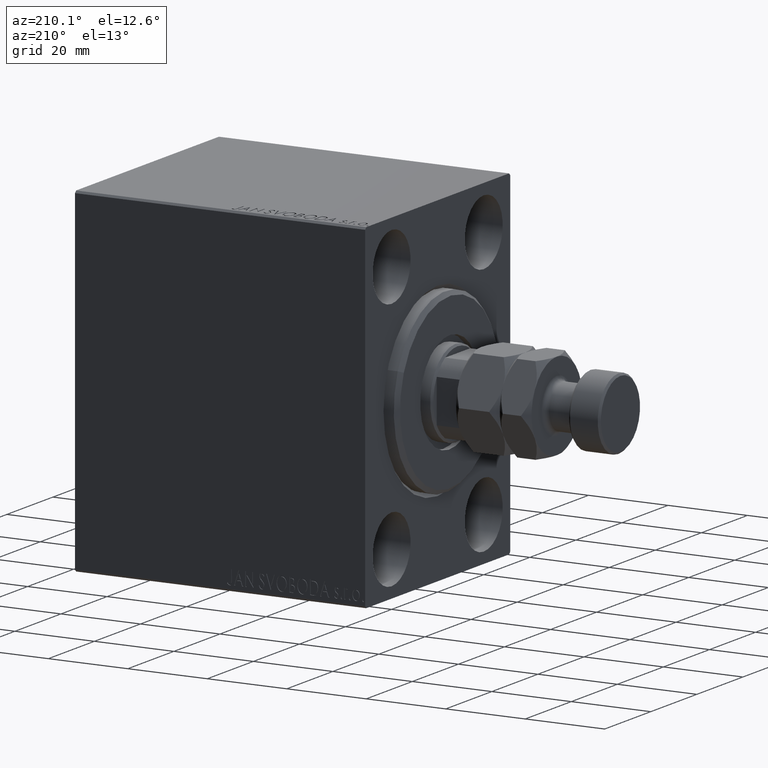
[diagram: clean part render]
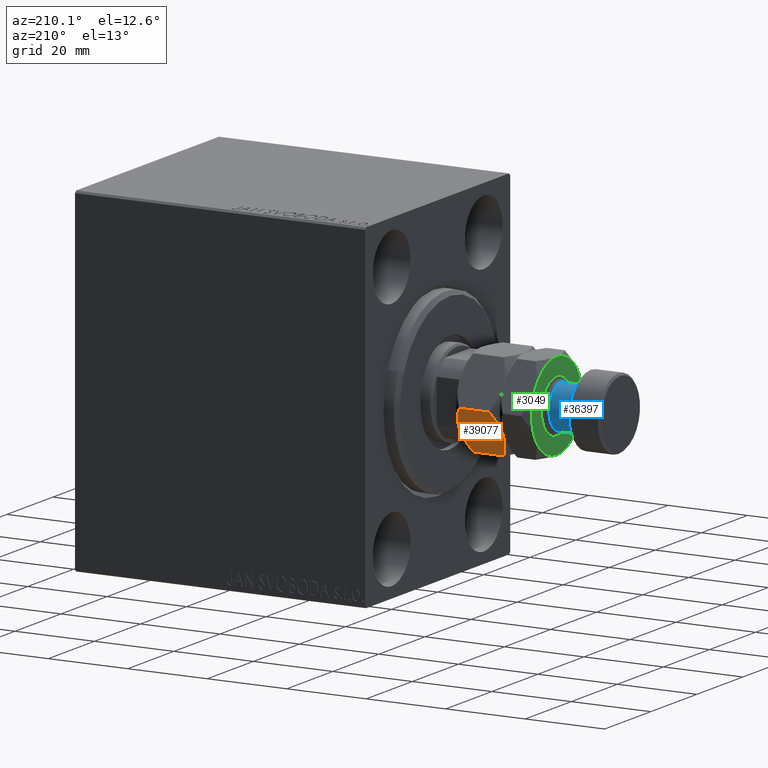
[diagram: same view with three faces highlighted in distinct colors, each labeled with its STEP entity id]
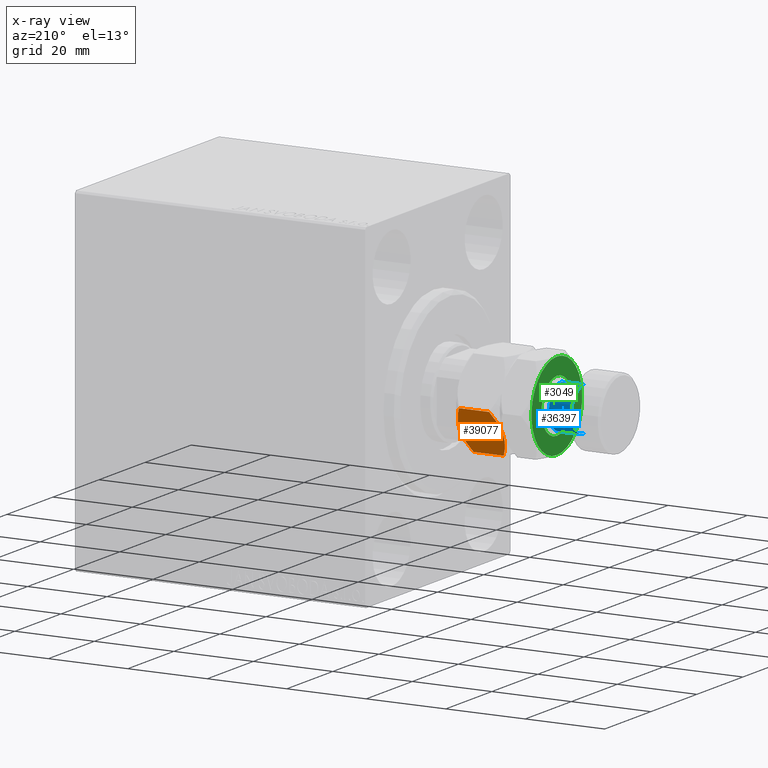
[diagram: x-ray of the same camera — body ghosted, the three highlighted faces saturated]
A machine part, auxiliary view with three faces highlighted in distinct colors.
The next image is the same camera in x-ray (body ghosted, the three faces saturated) — at least one of them is partly hidden behind the body in this view.
Their STEP definitions:

[orange] entity #39077 — the highlighted planar face has unit normal (0, -0.866, 0.5).
#247 = VERTEX_POINT ( 'NONE', #18101 ) ;
#668 = CARTESIAN_POINT ( 'NONE',  ( -11.00000000000000000, 6.350852961085890591, 9.298294077828234805 ) ) ;
#822 = VERTEX_POINT ( 'NONE', #25095 ) ;
#1100 = CARTESIAN_POINT ( 'NONE',  ( -5.499999999999992895, 9.526279441628830114, 0.000000000000000000 ) ) ;
#1340 = CARTESIAN_POINT ( 'NONE',  ( -3.579894028994817123, 10.63485314086127786, 10.79187792513292798 ) ) ;
#2362 = ORIENTED_EDGE ( 'NONE', *, *, #35231, .F. ) ;
#2654 = CARTESIAN_POINT ( 'NONE',  ( -5.499999999999992895, 9.526279441628830114, 0.000000000000000000 ) ) ;
#2948 = DIRECTION ( 'NONE',  ( -0.000000000000000000, -0.000000000000000000, -1.000000000000000000 ) ) ;
#3051 = CARTESIAN_POINT ( 'NONE',  ( -5.499999999999990230, 9.526279441628824785, 11.00000000000000000 ) ) ;
#3215 = LINE ( 'NONE', #41335, #27632 ) ;
#3329 = CARTESIAN_POINT ( 'NONE',  ( -7.884967580346608607, 8.149317767107183030, 0.3282192120904074417 ) ) ;
#3405 = ORIENTED_EDGE ( 'NONE', *, *, #11334, .F. ) ;
#5258 = CARTESIAN_POINT ( 'NONE',  ( -5.018290712253354435, 9.804394428580495813, 11.00000000000000178 ) ) ;
#5815 = DIRECTION ( 'NONE',  ( 0.8660254037844389297, 0.4999999999999992784, 0.000000000000000000 ) ) ;
#6557 = CARTESIAN_POINT ( 'NONE',  ( -5.981709287746635795, 9.248164454677164414, 1.734723475976807094E-15 ) ) ;
#7592 = VECTOR ( 'NONE', #2948, 1000.000000000000000 ) ;
#8931 = CARTESIAN_POINT ( 'NONE',  ( -4.529374112020101428, 10.08667055933643830, 10.95634070256487469 ) ) ;
#9261 = DIRECTION ( 'NONE',  ( 0.4999999999999993339, -0.8660254037844390407, 0.000000000000000000 ) ) ;
#9503 = CARTESIAN_POINT ( 'NONE',  ( -6.456670474420569406, 8.973945485696344093, 11.00000000000000000 ) ) ;
#9576 = ORIENTED_EDGE ( 'NONE', *, *, #31020, .F. ) ;
#10565 = VERTEX_POINT ( 'NONE', #35895 ) ;
#11334 = EDGE_CURVE ( 'NONE', #15381, #10565, #36693, .T. ) ;
#11448 = CARTESIAN_POINT ( 'NONE',  ( -1.748214531935804672, 11.69237379155741330, 0.7776848045220272621 ) ) ;
#11634 = B_SPLINE_CURVE_WITH_KNOTS ( 'NONE', 3,
 ( #1100, #18771, #43120, #11448, #15345, #40133 ),
 .UNSPECIFIED., .F., .F.,
 ( 4, 2, 4 ),
 ( 0.006583488920348303831, 0.009852050593448711396, 0.01312061226654911809 ),
 .UNSPECIFIED. ) ;
#12272 = CARTESIAN_POINT ( 'NONE',  ( -4.327962126576701651E-16, 12.70170592217176342, 9.298294077828241910 ) ) ;
#12985 = EDGE_LOOP ( 'NONE', ( #2362, #15192, #9576, #3405, #19566, #22036 ) ) ;
#13447 = CARTESIAN_POINT ( 'NONE',  ( -11.00000000000000000, 6.350852961085892368, 1.701705922171765195 ) ) ;
#13991 = EDGE_CURVE ( 'NONE', #15381, #14076, #30511, .T. ) ;
#14076 = VERTEX_POINT ( 'NONE', #28418 ) ;
#15192 = ORIENTED_EDGE ( 'NONE', *, *, #28940, .F. ) ;
#15345 = CARTESIAN_POINT ( 'NONE',  ( -0.8614806024966418230, 12.20432986441868728, 1.204329864418604235 ) ) ;
#15381 = VERTEX_POINT ( 'NONE', #12272 ) ;
#17052 = CARTESIAN_POINT ( 'NONE',  ( -11.00000000000000000, 6.350852961085890591, 9.298294077828234805 ) ) ;
#17770 = EDGE_CURVE ( 'NONE', #247, #14076, #11634, .T. ) ;
#18101 = CARTESIAN_POINT ( 'NONE',  ( -5.499999999999992895, 9.526279441628830114, 0.000000000000000000 ) ) ;
#18771 = CARTESIAN_POINT ( 'NONE',  ( -4.543329525579419048, 10.07861339756131791, 1.768604793866978714E-15 ) ) ;
#19566 = ORIENTED_EDGE ( 'NONE', *, *, #13991, .T. ) ;
#20326 = CARTESIAN_POINT ( 'NONE',  ( -6.470625887979888802, 8.965888323921223702, 0.04365929743512723255 ) ) ;
#20763 = CARTESIAN_POINT ( 'NONE',  ( -7.420105971005176215, 8.417705742396382362, 0.2081220748670755127 ) ) ;
#21995 = CARTESIAN_POINT ( 'NONE',  ( -4.327962126576701651E-16, 12.70170592217176342, 9.298294077828241910 ) ) ;
#22036 = ORIENTED_EDGE ( 'NONE', *, *, #17770, .F. ) ;
#22908 = CARTESIAN_POINT ( 'NONE',  ( -3.115032419653383400, 10.90324111615047542, 10.67178078790959539 ) ) ;
#23935 = CARTESIAN_POINT ( 'NONE',  ( -9.251785468064188223, 7.360185091700242488, 10.22231519547797340 ) ) ;
#25095 = CARTESIAN_POINT ( 'NONE',  ( -11.00000000000000000, 6.350852961085892368, 1.701705922171765195 ) ) ;
#27552 = DIRECTION ( 'NONE',  ( -0.000000000000000000, -0.000000000000000000, -1.000000000000000000 ) ) ;
#27632 = VECTOR ( 'NONE', #27552, 1000.000000000000000 ) ;
#28418 = CARTESIAN_POINT ( 'NONE',  ( 9.006588997586899406E-16, 12.70170592217176342, 1.701705922171758312 ) ) ;
#28940 = EDGE_CURVE ( 'NONE', #35876, #822, #3215, .T. ) ;
#29227 = CARTESIAN_POINT ( 'NONE',  ( 0.000000000000000000, 12.70170592217176342, 11.00000000000000000 ) ) ;
#29587 = B_SPLINE_CURVE_WITH_KNOTS ( 'NONE', 3,
 ( #3051, #9503, #41394, #23935, #37495, #17052 ),
 .UNSPECIFIED., .F., .F.,
 ( 4, 2, 4 ),
 ( 0.006583488920348289086, 0.009852050593448704457, 0.01312061226654911983 ),
 .UNSPECIFIED. ) ;
#29916 = FACE_OUTER_BOUND ( 'NONE', #12985, .T. ) ;
#30441 = CARTESIAN_POINT ( 'NONE',  ( -10.13752086928278118, 6.848805519375908979, 1.203753363881748362 ) ) ;
#30511 = LINE ( 'NONE', #37848, #7592 ) ;
#31020 = EDGE_CURVE ( 'NONE', #10565, #35876, #29587, .T. ) ;
#35231 = EDGE_CURVE ( 'NONE', #822, #247, #42996, .T. ) ;
#35876 = VERTEX_POINT ( 'NONE', #668 ) ;
#35895 = CARTESIAN_POINT ( 'NONE',  ( -5.499999999999990230, 9.526279441628824785, 11.00000000000000000 ) ) ;
#36469 = CARTESIAN_POINT ( 'NONE',  ( -1.744478007639206130, 11.69453107486589083, 10.21937661245322637 ) ) ;
#36692 = CARTESIAN_POINT ( 'NONE',  ( -5.499999999999990230, 9.526279441628824785, 11.00000000000000000 ) ) ;
#36693 = B_SPLINE_CURVE_WITH_KNOTS ( 'NONE', 3,
 ( #21995, #40364, #36469, #22908, #1340, #8931, #5258, #36692 ),
 .UNSPECIFIED., .F., .F.,
 ( 4, 2, 2, 4 ),
 ( 2.544311317609508508E-07, 0.003291871675740026034, 0.004937680298044156910, 0.006583488920348289086 ),
 .UNSPECIFIED. ) ;
#37495 = CARTESIAN_POINT ( 'NONE',  ( -10.13851939750335696, 6.848229018838968507, 9.795670135581390880 ) ) ;
#37848 = CARTESIAN_POINT ( 'NONE',  ( 0.000000000000000000, 12.70170592217176342, 11.00000000000000000 ) ) ;
#38536 = AXIS2_PLACEMENT_3D ( 'NONE', #29227, #9261, #5815 ) ;
#39077 = ADVANCED_FACE ( 'NONE', ( #29916 ), #43697, .F. ) ;
#40133 = CARTESIAN_POINT ( 'NONE',  ( 9.006588997586899406E-16, 12.70170592217176342, 1.701705922171758312 ) ) ;
#40364 = CARTESIAN_POINT ( 'NONE',  ( -0.8624791307172121613, 12.20375336388174681, 9.796246636118258522 ) ) ;
#41335 = CARTESIAN_POINT ( 'NONE',  ( -11.00000000000000000, 6.350852961085890591, 11.00000000000000000 ) ) ;
#41394 = CARTESIAN_POINT ( 'NONE',  ( -7.397073880711845462, 8.431003325927239445, 10.83109139163524404 ) ) ;
#42996 = B_SPLINE_CURVE_WITH_KNOTS ( 'NONE', 3,
 ( #13447, #30441, #44443, #3329, #20763, #20326, #6557, #2654 ),
 .UNSPECIFIED., .F., .F.,
 ( 4, 2, 2, 4 ),
 ( 2.544311317612473652E-07, 0.003291871675740032539, 0.004937680298044168185, 0.006583488920348303831 ),
 .UNSPECIFIED. ) ;
#43120 = CARTESIAN_POINT ( 'NONE',  ( -3.602926119288147433, 10.62155555733042434, 0.1689086083647601266 ) ) ;
#43697 = PLANE ( 'NONE',  #38536 ) ;
#44443 = CARTESIAN_POINT ( 'NONE',  ( -9.255521992360788985, 7.358027808391769398, 0.7806233875467772920 ) ) ;

[blue] entity #36397 — the highlighted cylindrical surface (edge-blend (fillet) strip) has radius 5.5 mm, axis along (1, -0, -0).
#116 = CARTESIAN_POINT ( 'NONE',  ( 0.000000000000000000, 0.000000000000000000, 20.19999999999999929 ) ) ;
#4192 = DIRECTION ( 'NONE',  ( -0.000000000000000000, -0.000000000000000000, -1.000000000000000000 ) ) ;
#4566 = CARTESIAN_POINT ( 'NONE',  ( -5.500000000000000000, 0.000000000000000000, 20.19999999999999929 ) ) ;
#6592 = LINE ( 'NONE', #24477, #31076 ) ;
#6677 = VERTEX_POINT ( 'NONE', #4566 ) ;
#6830 = AXIS2_PLACEMENT_3D ( 'NONE', #21178, #28299, #24630 ) ;
#8095 = ORIENTED_EDGE ( 'NONE', *, *, #20088, .T. ) ;
#9473 = VERTEX_POINT ( 'NONE', #10474 ) ;
#10474 = CARTESIAN_POINT ( 'NONE',  ( 5.500000000000000000, 6.735557395310442023E-16, 25.80000000000000071 ) ) ;
#11406 = VERTEX_POINT ( 'NONE', #16475 ) ;
#12232 = CARTESIAN_POINT ( 'NONE',  ( -5.500000000000000000, 0.000000000000000000, 27.00000000000000000 ) ) ;
#12600 = EDGE_CURVE ( 'NONE', #16636, #9473, #31745, .T. ) ;
#14752 = CYLINDRICAL_SURFACE ( 'NONE', #34829, 5.500000000000000000 ) ;
#16475 = CARTESIAN_POINT ( 'NONE',  ( 5.500000000000000000, 6.735557395310442023E-16, 20.19999999999999929 ) ) ;
#16636 = VERTEX_POINT ( 'NONE', #24106 ) ;
#19015 = EDGE_CURVE ( 'NONE', #9473, #11406, #6592, .T. ) ;
#20088 = EDGE_CURVE ( 'NONE', #11406, #6677, #25967, .T. ) ;
#21178 = CARTESIAN_POINT ( 'NONE',  ( 0.000000000000000000, 0.000000000000000000, 25.80000000000000071 ) ) ;
#21221 = DIRECTION ( 'NONE',  ( 1.000000000000000000, 0.000000000000000000, 0.000000000000000000 ) ) ;
#21618 = CARTESIAN_POINT ( 'NONE',  ( 0.000000000000000000, 0.000000000000000000, 27.00000000000000000 ) ) ;
#23148 = EDGE_CURVE ( 'NONE', #16636, #6677, #36776, .T. ) ;
#24106 = CARTESIAN_POINT ( 'NONE',  ( -5.500000000000000000, 0.000000000000000000, 25.80000000000000071 ) ) ;
#24477 = CARTESIAN_POINT ( 'NONE',  ( 5.500000000000000000, 6.735557395310442023E-16, 27.00000000000000000 ) ) ;
#24630 = DIRECTION ( 'NONE',  ( 1.000000000000000000, 0.000000000000000000, 0.000000000000000000 ) ) ;
#25967 = CIRCLE ( 'NONE', #40618, 5.500000000000000000 ) ;
#25988 = ORIENTED_EDGE ( 'NONE', *, *, #12600, .T. ) ;
#28106 = DIRECTION ( 'NONE',  ( 0.000000000000000000, -0.000000000000000000, 1.000000000000000000 ) ) ;
#28299 = DIRECTION ( 'NONE',  ( -0.000000000000000000, -0.000000000000000000, -1.000000000000000000 ) ) ;
#31076 = VECTOR ( 'NONE', #38718, 1000.000000000000000 ) ;
#31745 = CIRCLE ( 'NONE', #6830, 5.500000000000000000 ) ;
#33749 = ORIENTED_EDGE ( 'NONE', *, *, #19015, .T. ) ;
#34829 = AXIS2_PLACEMENT_3D ( 'NONE', #21618, #4192, #38389 ) ;
#35402 = FACE_OUTER_BOUND ( 'NONE', #38798, .T. ) ;
#36397 = ADVANCED_FACE ( 'NONE', ( #35402 ), #14752, .T. ) ;
#36776 = LINE ( 'NONE', #12232, #40692 ) ;
#38389 = DIRECTION ( 'NONE',  ( -1.000000000000000000, 0.000000000000000000, 0.000000000000000000 ) ) ;
#38718 = DIRECTION ( 'NONE',  ( -0.000000000000000000, -0.000000000000000000, -1.000000000000000000 ) ) ;
#38798 = EDGE_LOOP ( 'NONE', ( #25988, #33749, #8095, #42735 ) ) ;
#40447 = DIRECTION ( 'NONE',  ( -0.000000000000000000, -0.000000000000000000, -1.000000000000000000 ) ) ;
#40618 = AXIS2_PLACEMENT_3D ( 'NONE', #116, #28106, #21221 ) ;
#40692 = VECTOR ( 'NONE', #40447, 1000.000000000000000 ) ;
#42735 = ORIENTED_EDGE ( 'NONE', *, *, #23148, .F. ) ;

[green] entity #3049 — the highlighted planar face has unit normal (-1, 0, 0).
#232 = DIRECTION ( 'NONE',  ( 1.000000000000000000, 0.000000000000000000, 0.000000000000000000 ) ) ;
#284 = AXIS2_PLACEMENT_3D ( 'NONE', #7061, #20150, #10280 ) ;
#862 = ORIENTED_EDGE ( 'NONE', *, *, #31622, .T. ) ;
#1052 = CARTESIAN_POINT ( 'NONE',  ( -10.99999999999999289, 0.000000000000000000, 19.00000000000000000 ) ) ;
#1562 = AXIS2_PLACEMENT_3D ( 'NONE', #10113, #44558, #44778 ) ;
#1584 = ORIENTED_EDGE ( 'NONE', *, *, #16053, .T. ) ;
#1759 = CARTESIAN_POINT ( 'NONE',  ( -6.699999999999999289, 8.205133554287265576E-16, 19.00000000000000000 ) ) ;
#1866 = PLANE ( 'NONE',  #9509 ) ;
#3049 = ADVANCED_FACE ( 'NONE', ( #23641, #16317 ), #1866, .T. ) ;
#3585 = VERTEX_POINT ( 'NONE', #20899 ) ;
#4239 = CIRCLE ( 'NONE', #17424, 6.699999999999999289 ) ;
#4494 = EDGE_LOOP ( 'NONE', ( #39389, #16193 ) ) ;
#4978 = EDGE_CURVE ( 'NONE', #40728, #25331, #36696, .T. ) ;
#5318 = DIRECTION ( 'NONE',  ( 1.000000000000000000, 0.000000000000000000, -0.000000000000000000 ) ) ;
#5964 = CIRCLE ( 'NONE', #1562, 10.99999999999999289 ) ;
#6643 = AXIS2_PLACEMENT_3D ( 'NONE', #34264, #17043, #34711 ) ;
#7061 = CARTESIAN_POINT ( 'NONE',  ( 0.000000000000000000, 0.000000000000000000, 19.00000000000000000 ) ) ;
#7085 = EDGE_CURVE ( 'NONE', #19082, #3585, #14712, .T. ) ;
#7409 = EDGE_CURVE ( 'NONE', #25331, #24445, #5964, .T. ) ;
#8082 = CARTESIAN_POINT ( 'NONE',  ( 6.699999999999999289, 0.000000000000000000, 19.00000000000000000 ) ) ;
#8686 = VERTEX_POINT ( 'NONE', #1759 ) ;
#8802 = ORIENTED_EDGE ( 'NONE', *, *, #7409, .T. ) ;
#9217 = DIRECTION ( 'NONE',  ( 0.000000000000000000, -0.000000000000000000, 1.000000000000000000 ) ) ;
#9509 = AXIS2_PLACEMENT_3D ( 'NONE', #26637, #9217, #5318 ) ;
#10113 = CARTESIAN_POINT ( 'NONE',  ( 0.000000000000000000, 0.000000000000000000, 19.00000000000000000 ) ) ;
#10280 = DIRECTION ( 'NONE',  ( 1.000000000000000000, 0.000000000000000000, 0.000000000000000000 ) ) ;
#10289 = CARTESIAN_POINT ( 'NONE',  ( 0.000000000000000000, 0.000000000000000000, 19.00000000000000000 ) ) ;
#12872 = CIRCLE ( 'NONE', #23892, 10.99999999999999289 ) ;
#13056 = VERTEX_POINT ( 'NONE', #38517 ) ;
#13784 = DIRECTION ( 'NONE',  ( 0.000000000000000000, -0.000000000000000000, 1.000000000000000000 ) ) ;
#14656 = CARTESIAN_POINT ( 'NONE',  ( 0.000000000000000000, 0.000000000000000000, 19.00000000000000000 ) ) ;
#14712 = CIRCLE ( 'NONE', #6643, 10.99999999999999289 ) ;
#15441 = AXIS2_PLACEMENT_3D ( 'NONE', #14656, #39893, #35537 ) ;
#16053 = EDGE_CURVE ( 'NONE', #24445, #19082, #39872, .T. ) ;
#16193 = ORIENTED_EDGE ( 'NONE', *, *, #44735, .T. ) ;
#16317 = FACE_OUTER_BOUND ( 'NONE', #28135, .T. ) ;
#17043 = DIRECTION ( 'NONE',  ( 0.000000000000000000, -0.000000000000000000, 1.000000000000000000 ) ) ;
#17424 = AXIS2_PLACEMENT_3D ( 'NONE', #44146, #37026, #33589 ) ;
#18232 = CARTESIAN_POINT ( 'NONE',  ( 10.99999999999999289, 1.502314598737159031E-15, 19.00000000000000000 ) ) ;
#19082 = VERTEX_POINT ( 'NONE', #1052 ) ;
#20150 = DIRECTION ( 'NONE',  ( 0.000000000000000000, -0.000000000000000000, 1.000000000000000000 ) ) ;
#20323 = CIRCLE ( 'NONE', #21075, 6.699999999999999289 ) ;
#20440 = CARTESIAN_POINT ( 'NONE',  ( 0.000000000000000000, 0.000000000000000000, 19.00000000000000000 ) ) ;
#20899 = CARTESIAN_POINT ( 'NONE',  ( -5.500000000000000000, -9.526279441628824785, 19.00000000000000000 ) ) ;
#21075 = AXIS2_PLACEMENT_3D ( 'NONE', #10289, #41956, #27043 ) ;
#21861 = AXIS2_PLACEMENT_3D ( 'NONE', #27841, #34280, #38397 ) ;
#23331 = CIRCLE ( 'NONE', #21861, 10.99999999999999289 ) ;
#23641 = FACE_BOUND ( 'NONE', #4494, .T. ) ;
#23892 = AXIS2_PLACEMENT_3D ( 'NONE', #20440, #13784, #232 ) ;
#24445 = VERTEX_POINT ( 'NONE', #39381 ) ;
#25012 = EDGE_CURVE ( 'NONE', #13056, #40728, #12872, .T. ) ;
#25331 = VERTEX_POINT ( 'NONE', #39877 ) ;
#26637 = CARTESIAN_POINT ( 'NONE',  ( 0.000000000000000000, 0.000000000000000000, 19.00000000000000000 ) ) ;
#27043 = DIRECTION ( 'NONE',  ( 1.000000000000000000, 0.000000000000000000, 0.000000000000000000 ) ) ;
#27841 = CARTESIAN_POINT ( 'NONE',  ( 0.000000000000000000, 0.000000000000000000, 19.00000000000000000 ) ) ;
#27874 = ORIENTED_EDGE ( 'NONE', *, *, #25012, .T. ) ;
#28135 = EDGE_LOOP ( 'NONE', ( #27874, #34321, #8802, #1584, #44134, #862 ) ) ;
#29207 = EDGE_CURVE ( 'NONE', #33457, #8686, #20323, .T. ) ;
#31622 = EDGE_CURVE ( 'NONE', #3585, #13056, #23331, .T. ) ;
#33457 = VERTEX_POINT ( 'NONE', #8082 ) ;
#33589 = DIRECTION ( 'NONE',  ( 1.000000000000000000, 0.000000000000000000, 0.000000000000000000 ) ) ;
#34264 = CARTESIAN_POINT ( 'NONE',  ( 0.000000000000000000, 0.000000000000000000, 19.00000000000000000 ) ) ;
#34280 = DIRECTION ( 'NONE',  ( 0.000000000000000000, -0.000000000000000000, 1.000000000000000000 ) ) ;
#34321 = ORIENTED_EDGE ( 'NONE', *, *, #4978, .T. ) ;
#34711 = DIRECTION ( 'NONE',  ( 1.000000000000000000, 0.000000000000000000, 0.000000000000000000 ) ) ;
#35537 = DIRECTION ( 'NONE',  ( 1.000000000000000000, 0.000000000000000000, 0.000000000000000000 ) ) ;
#36696 = CIRCLE ( 'NONE', #15441, 10.99999999999999289 ) ;
#37026 = DIRECTION ( 'NONE',  ( -0.000000000000000000, 0.000000000000000000, -1.000000000000000000 ) ) ;
#38397 = DIRECTION ( 'NONE',  ( 1.000000000000000000, 0.000000000000000000, 0.000000000000000000 ) ) ;
#38517 = CARTESIAN_POINT ( 'NONE',  ( 5.499999999999998224, -9.526279441628817679, 19.00000000000000000 ) ) ;
#39381 = CARTESIAN_POINT ( 'NONE',  ( -5.499999999999997335, 9.526279441628819455, 19.00000000000000000 ) ) ;
#39389 = ORIENTED_EDGE ( 'NONE', *, *, #29207, .T. ) ;
#39872 = CIRCLE ( 'NONE', #284, 10.99999999999999289 ) ;
#39877 = CARTESIAN_POINT ( 'NONE',  ( 5.499999999999999112, 9.526279441628817679, 19.00000000000000000 ) ) ;
#39893 = DIRECTION ( 'NONE',  ( 0.000000000000000000, 0.000000000000000000, 1.000000000000000000 ) ) ;
#40728 = VERTEX_POINT ( 'NONE', #18232 ) ;
#41956 = DIRECTION ( 'NONE',  ( -0.000000000000000000, 0.000000000000000000, -1.000000000000000000 ) ) ;
#44134 = ORIENTED_EDGE ( 'NONE', *, *, #7085, .T. ) ;
#44146 = CARTESIAN_POINT ( 'NONE',  ( 0.000000000000000000, 0.000000000000000000, 19.00000000000000000 ) ) ;
#44558 = DIRECTION ( 'NONE',  ( 0.000000000000000000, -0.000000000000000000, 1.000000000000000000 ) ) ;
#44735 = EDGE_CURVE ( 'NONE', #8686, #33457, #4239, .T. ) ;
#44778 = DIRECTION ( 'NONE',  ( 1.000000000000000000, 0.000000000000000000, 0.000000000000000000 ) ) ;